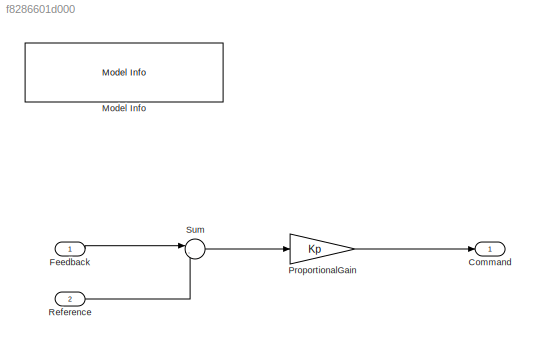
MODEL slx_f8286601d000
KIND model
CONFIG AbsTol = auto
CONFIG EnableMultiTasking = on
CONFIG FixedStep = auto
CONFIG MaxStep = auto
CONFIG MinStep = auto
CONFIG RelTol = 1e-3
CONFIG SampleTimeConstraint = Unconstrained
CONFIG SolverName = FixedStepDiscrete
CONFIG StartTime = 0.0
CONFIG StopTime = 10.0
WORKSPACE source: MATLAB code (in-file)
WORKSPACE code: localDD_Actuator_Control;
BLOCK [Outport] Command
  OutDataTypeStr = double
  VectorParamsAs1DForOutWhenUnconnected = off
BLOCK [Inport] Feedback
  OutDataTypeStr = double
  OutMax = 0.1
  OutMin = -0.1
  PortDimensions = 1
  SampleTime = 0.001
BLOCK [Reference] Model Info  REF=simulink/Model-Wide
Utilities/Model Info
  SourceBlock = simulink/Model-Wide\nUtilities/Model Info
  SourceType = CMBlock
BLOCK [Gain] ProportionalGain
  Gain = Kp
BLOCK [Inport] Reference
  OutDataTypeStr = double
  OutMax = 0.1
  OutMin = -0.1
  Port = 2
  PortDimensions = 1
  SampleTime = 0.001
BLOCK [Sum] Sum
  Inputs = |-+
LINE Feedback:1 -> Sum:1
LINE ProportionalGain:1 -> Command:1
LINE Reference:1 -> Sum:2
LINE Sum:1 -> ProportionalGain:1
